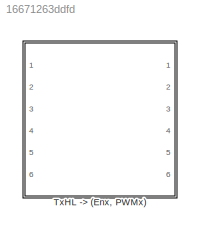
MODEL slx_16671263ddfd
KIND library
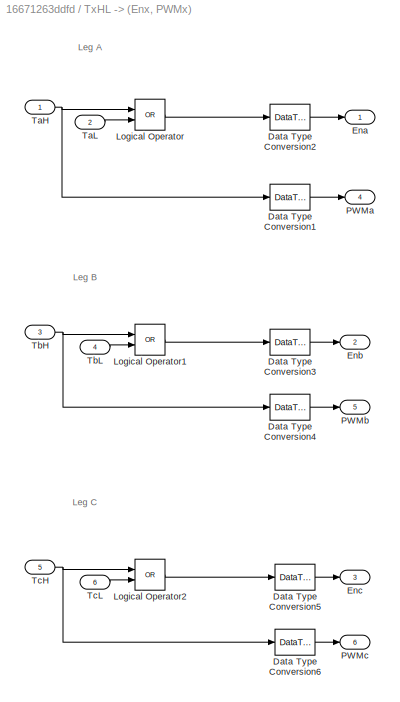
BLOCK [SubSystem] TxHL -> (Enx, PWMx)
  Ports = [6, 6]
  RequestExecContextInheritance = off
BLOCK [DataTypeConversion] TxHL -> (Enx, PWMx)/Data Type Conversion1
  OutDataTypeStr = double
  RndMeth = Floor
  SaturateOnIntegerOverflow = off
BLOCK [DataTypeConversion] TxHL -> (Enx, PWMx)/Data Type Conversion2
  OutDataTypeStr = double
  RndMeth = Floor
  SaturateOnIntegerOverflow = off
BLOCK [DataTypeConversion] TxHL -> (Enx, PWMx)/Data Type Conversion3
  OutDataTypeStr = double
  RndMeth = Floor
  SaturateOnIntegerOverflow = off
BLOCK [DataTypeConversion] TxHL -> (Enx, PWMx)/Data Type Conversion4
  OutDataTypeStr = double
  RndMeth = Floor
  SaturateOnIntegerOverflow = off
BLOCK [DataTypeConversion] TxHL -> (Enx, PWMx)/Data Type Conversion5
  OutDataTypeStr = double
  RndMeth = Floor
  SaturateOnIntegerOverflow = off
BLOCK [DataTypeConversion] TxHL -> (Enx, PWMx)/Data Type Conversion6
  OutDataTypeStr = double
  RndMeth = Floor
  SaturateOnIntegerOverflow = off
BLOCK [Outport] TxHL -> (Enx, PWMx)/Ena
  IconDisplay = Port number
BLOCK [Outport] TxHL -> (Enx, PWMx)/Enb
  IconDisplay = Port number
  Port = 2
BLOCK [Outport] TxHL -> (Enx, PWMx)/Enc
  IconDisplay = Port number
  Port = 3
BLOCK [Logic] TxHL -> (Enx, PWMx)/Logical Operator
  AllPortsSameDT = off
  Operator = OR
  OutDataTypeStr = boolean
  Ports = [2, 1]
BLOCK [Logic] TxHL -> (Enx, PWMx)/Logical Operator1
  AllPortsSameDT = off
  Operator = OR
  OutDataTypeStr = boolean
  Ports = [2, 1]
BLOCK [Logic] TxHL -> (Enx, PWMx)/Logical Operator2
  AllPortsSameDT = off
  Operator = OR
  OutDataTypeStr = boolean
  Ports = [2, 1]
BLOCK [Outport] TxHL -> (Enx, PWMx)/PWMa
  IconDisplay = Port number
  Port = 4
BLOCK [Outport] TxHL -> (Enx, PWMx)/PWMb
  IconDisplay = Port number
  Port = 5
BLOCK [Outport] TxHL -> (Enx, PWMx)/PWMc
  IconDisplay = Port number
  Port = 6
BLOCK [Inport] TxHL -> (Enx, PWMx)/TaH
  IconDisplay = Port number
BLOCK [Inport] TxHL -> (Enx, PWMx)/TaL
  IconDisplay = Port number
  Port = 2
BLOCK [Inport] TxHL -> (Enx, PWMx)/TbH
  IconDisplay = Port number
  Port = 3
BLOCK [Inport] TxHL -> (Enx, PWMx)/TbL
  IconDisplay = Port number
  Port = 4
BLOCK [Inport] TxHL -> (Enx, PWMx)/TcH
  IconDisplay = Port number
  Port = 5
BLOCK [Inport] TxHL -> (Enx, PWMx)/TcL
  IconDisplay = Port number
  Port = 6
ANNOTATION TxHL -> (Enx, PWMx): Leg A
ANNOTATION TxHL -> (Enx, PWMx): Leg B
ANNOTATION TxHL -> (Enx, PWMx): Leg C
LINE TxHL -> (Enx, PWMx)/Data Type Conversion1:1 -> TxHL -> (Enx, PWMx)/PWMa:1
LINE TxHL -> (Enx, PWMx)/Data Type Conversion2:1 -> TxHL -> (Enx, PWMx)/Ena:1
LINE TxHL -> (Enx, PWMx)/Data Type Conversion3:1 -> TxHL -> (Enx, PWMx)/Enb:1
LINE TxHL -> (Enx, PWMx)/Data Type Conversion4:1 -> TxHL -> (Enx, PWMx)/PWMb:1
LINE TxHL -> (Enx, PWMx)/Data Type Conversion5:1 -> TxHL -> (Enx, PWMx)/Enc:1
LINE TxHL -> (Enx, PWMx)/Data Type Conversion6:1 -> TxHL -> (Enx, PWMx)/PWMc:1
LINE TxHL -> (Enx, PWMx)/Logical Operator1:1 -> TxHL -> (Enx, PWMx)/Data Type Conversion3:1
LINE TxHL -> (Enx, PWMx)/Logical Operator2:1 -> TxHL -> (Enx, PWMx)/Data Type Conversion5:1
LINE TxHL -> (Enx, PWMx)/Logical Operator:1 -> TxHL -> (Enx, PWMx)/Data Type Conversion2:1
NET TxHL -> (Enx, PWMx)/TaH:1 -> TxHL -> (Enx, PWMx)/Data Type Conversion1:1, TxHL -> (Enx, PWMx)/Logical Operator:1
LINE TxHL -> (Enx, PWMx)/TaL:1 -> TxHL -> (Enx, PWMx)/Logical Operator:2
NET TxHL -> (Enx, PWMx)/TbH:1 -> TxHL -> (Enx, PWMx)/Data Type Conversion4:1, TxHL -> (Enx, PWMx)/Logical Operator1:1
LINE TxHL -> (Enx, PWMx)/TbL:1 -> TxHL -> (Enx, PWMx)/Logical Operator1:2
NET TxHL -> (Enx, PWMx)/TcH:1 -> TxHL -> (Enx, PWMx)/Data Type Conversion6:1, TxHL -> (Enx, PWMx)/Logical Operator2:1
LINE TxHL -> (Enx, PWMx)/TcL:1 -> TxHL -> (Enx, PWMx)/Logical Operator2:2
note: NET lines group one-source signal fan-out (src -> all destinations, sorted); 1:1 wires keep LINE
